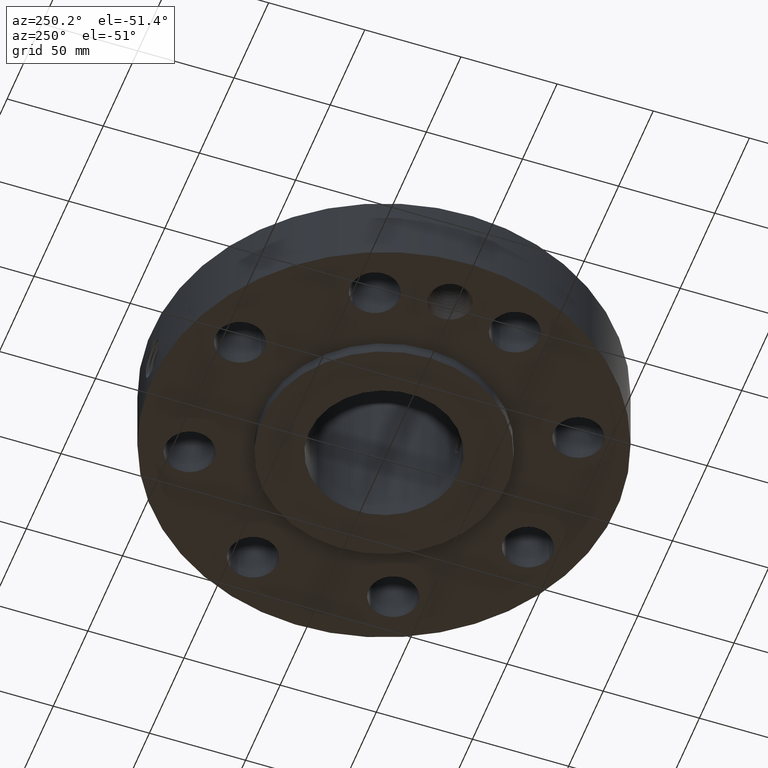
[diagram: clean part render]
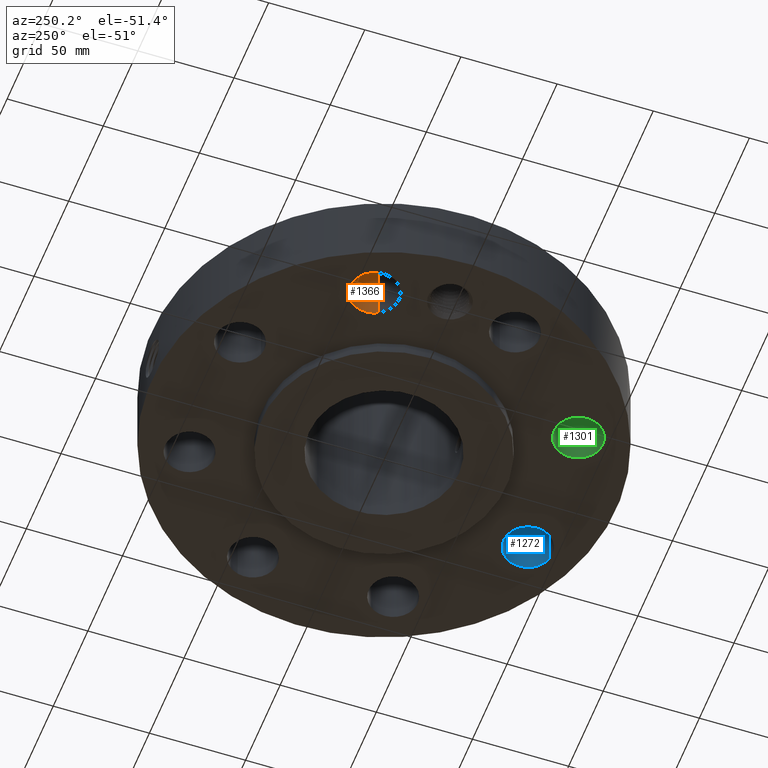
[diagram: same view with three faces highlighted in distinct colors, each labeled with its STEP entity id]
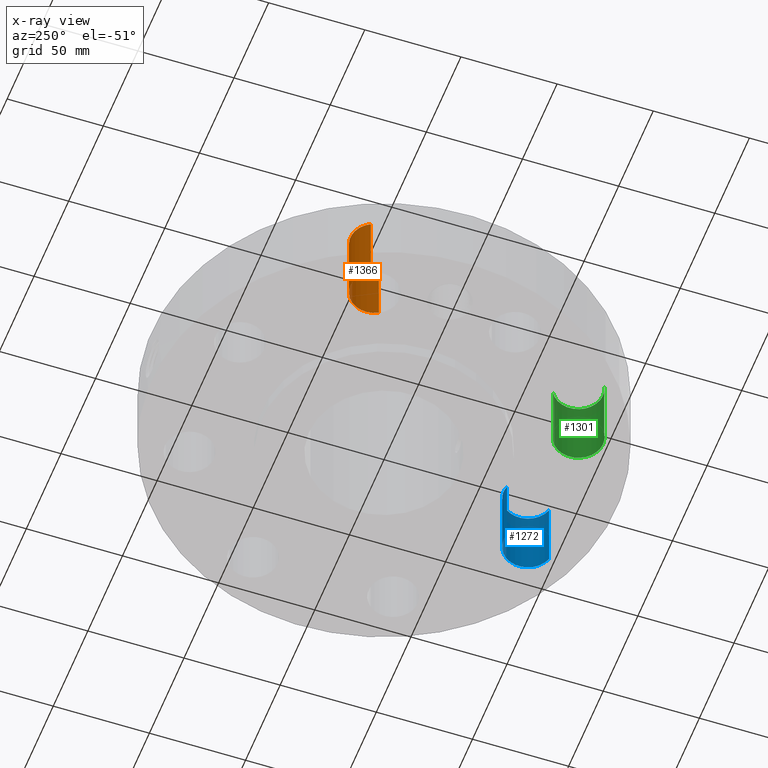
[diagram: x-ray of the same camera — body ghosted, the three highlighted faces saturated]
A machine part, auxiliary view with three faces highlighted in distinct colors.
The next image is the same camera in x-ray (body ghosted, the three faces saturated) — at least one of them is partly hidden behind the body in this view.
Their STEP definitions:

[orange] entity #1366 — the highlighted cylindrical surface (edge-blend (fillet) strip) has radius 12.7 mm, axis along (-0, 0, -1).
#311=AXIS2_PLACEMENT_3D('Circle Axis2P3D',#309,#310,$) ;
#607=AXIS2_PLACEMENT_3D('Circle Axis2P3D',#605,#606,$) ;
#1341=AXIS2_PLACEMENT_3D('Cylinder Axis2P3D',#1338,#1339,#1340) ;
#304=CARTESIAN_POINT('Vertex',(-3.02575696598,1.19535010207,0.250000000001)) ;
#306=CARTESIAN_POINT('Vertex',(-3.90333952788,1.67477564068,0.250000000001)) ;
#309=CARTESIAN_POINT('Axis2P3D Location',(-3.46454824693,1.43506287137,0.250000000001)) ;
#605=CARTESIAN_POINT('Axis2P3D Location',(-3.46454824693,1.43506287137,1.75000000001)) ;
#609=CARTESIAN_POINT('Vertex',(-3.90333952788,1.67477564068,1.75000000001)) ;
#611=CARTESIAN_POINT('Vertex',(-3.02575696598,1.19535010207,1.75000000001)) ;
#1338=CARTESIAN_POINT('Axis2P3D Location',(-3.46454824693,1.43506287137,1.74606299213)) ;
#1343=CARTESIAN_POINT('Line Origine',(-3.02575696598,1.19535010207,1.)) ;
#1348=CARTESIAN_POINT('Line Origine',(-3.90333952788,1.67477564068,1.)) ;
#310=DIRECTION('Axis2P3D Direction',(0.,0.,-0.0393700787402)) ;
#606=DIRECTION('Axis2P3D Direction',(0.,0.,-0.0393700787402)) ;
#1339=DIRECTION('Axis2P3D Direction',(-0.,0.,-0.0393700787402)) ;
#1340=DIRECTION('Axis2P3D XDirection',(-0.0345504945626,0.0188750212049,0.)) ;
#1344=DIRECTION('Vector Direction',(0.,0.,-0.0393700787402)) ;
#1349=DIRECTION('Vector Direction',(0.,0.,-0.0393700787402)) ;
#1345=VECTOR('Line Direction',#1344,0.0393700787402) ;
#1350=VECTOR('Line Direction',#1349,0.0393700787402) ;
#1361=ORIENTED_EDGE('',*,*,#1352,.F.) ;
#1362=ORIENTED_EDGE('',*,*,#313,.T.) ;
#1363=ORIENTED_EDGE('',*,*,#1347,.T.) ;
#1364=ORIENTED_EDGE('',*,*,#613,.F.) ;
#1366=ADVANCED_FACE('PartBody',(#1365),#1342,.F.) ;
#312=CIRCLE('generated circle',#311,0.500000000002) ;
#608=CIRCLE('generated circle',#607,0.500000000002) ;
#1342=CYLINDRICAL_SURFACE('generated cylinder',#1341,0.500000000002) ;
#313=EDGE_CURVE('',#307,#305,#312,.T.) ;
#613=EDGE_CURVE('',#610,#612,#608,.T.) ;
#1347=EDGE_CURVE('',#305,#612,#1346,.F.) ;
#1352=EDGE_CURVE('',#307,#610,#1351,.F.) ;
#1360=EDGE_LOOP('',(#1361,#1362,#1363,#1364)) ;
#1365=FACE_OUTER_BOUND('',#1360,.T.) ;
#1346=LINE('Line',#1343,#1345) ;
#1351=LINE('Line',#1348,#1350) ;
#305=VERTEX_POINT('',#304) ;
#307=VERTEX_POINT('',#306) ;
#610=VERTEX_POINT('',#609) ;
#612=VERTEX_POINT('',#611) ;

[blue] entity #1272 — the highlighted cylindrical surface (edge-blend (fillet) strip) has radius 12.7 mm, axis along (0, -0, -1).
#248=AXIS2_PLACEMENT_3D('Circle Axis2P3D',#246,#247,$) ;
#562=AXIS2_PLACEMENT_3D('Circle Axis2P3D',#560,#561,$) ;
#1254=AXIS2_PLACEMENT_3D('Cylinder Axis2P3D',#1251,#1252,#1253) ;
#246=CARTESIAN_POINT('Axis2P3D Location',(1.43506287137,-3.46454824693,0.250000000001)) ;
#250=CARTESIAN_POINT('Vertex',(1.2942931058,-2.98477343194,0.250000000001)) ;
#252=CARTESIAN_POINT('Vertex',(1.57583263695,-3.94432306193,0.250000000001)) ;
#555=CARTESIAN_POINT('Vertex',(1.57583263695,-3.94432306193,1.75000000001)) ;
#557=CARTESIAN_POINT('Vertex',(1.2942931058,-2.98477343194,1.75000000001)) ;
#560=CARTESIAN_POINT('Axis2P3D Location',(1.43506287137,-3.46454824693,1.75000000001)) ;
#1251=CARTESIAN_POINT('Axis2P3D Location',(1.43506287137,-3.46454824693,1.74606299213)) ;
#1256=CARTESIAN_POINT('Line Origine',(1.2942931058,-2.98477343194,1.)) ;
#1261=CARTESIAN_POINT('Line Origine',(1.57583263695,-3.94432306193,1.)) ;
#247=DIRECTION('Axis2P3D Direction',(0.,0.,-0.0393700787402)) ;
#561=DIRECTION('Axis2P3D Direction',(0.,0.,-0.0393700787402)) ;
#1252=DIRECTION('Axis2P3D Direction',(0.,-0.,-0.0393700787402)) ;
#1253=DIRECTION('Axis2P3D XDirection',(0.0110842335096,-0.0377775444876,0.)) ;
#1257=DIRECTION('Vector Direction',(0.,0.,-0.0393700787402)) ;
#1262=DIRECTION('Vector Direction',(0.,0.,-0.0393700787402)) ;
#1258=VECTOR('Line Direction',#1257,0.0393700787402) ;
#1263=VECTOR('Line Direction',#1262,0.0393700787402) ;
#1267=ORIENTED_EDGE('',*,*,#1260,.F.) ;
#1268=ORIENTED_EDGE('',*,*,#254,.T.) ;
#1269=ORIENTED_EDGE('',*,*,#1265,.T.) ;
#1270=ORIENTED_EDGE('',*,*,#564,.F.) ;
#1272=ADVANCED_FACE('PartBody',(#1271),#1255,.F.) ;
#249=CIRCLE('generated circle',#248,0.500000000002) ;
#563=CIRCLE('generated circle',#562,0.500000000002) ;
#1255=CYLINDRICAL_SURFACE('generated cylinder',#1254,0.500000000002) ;
#254=EDGE_CURVE('',#251,#253,#249,.T.) ;
#564=EDGE_CURVE('',#558,#556,#563,.T.) ;
#1260=EDGE_CURVE('',#251,#558,#1259,.F.) ;
#1265=EDGE_CURVE('',#253,#556,#1264,.F.) ;
#1266=EDGE_LOOP('',(#1267,#1268,#1269,#1270)) ;
#1271=FACE_OUTER_BOUND('',#1266,.T.) ;
#1259=LINE('Line',#1256,#1258) ;
#1264=LINE('Line',#1261,#1263) ;
#251=VERTEX_POINT('',#250) ;
#253=VERTEX_POINT('',#252) ;
#556=VERTEX_POINT('',#555) ;
#558=VERTEX_POINT('',#557) ;

[green] entity #1301 — the highlighted cylindrical surface (edge-blend (fillet) strip) has radius 12.7 mm, axis along (0, -0, -1).
#266=AXIS2_PLACEMENT_3D('Circle Axis2P3D',#264,#265,$) ;
#580=AXIS2_PLACEMENT_3D('Circle Axis2P3D',#578,#579,$) ;
#1283=AXIS2_PLACEMENT_3D('Cylinder Axis2P3D',#1280,#1281,#1282) ;
#264=CARTESIAN_POINT('Axis2P3D Location',(-1.43506287137,-3.46454824693,0.250000000001)) ;
#268=CARTESIAN_POINT('Vertex',(-1.19535010207,-3.02575696598,0.250000000001)) ;
#270=CARTESIAN_POINT('Vertex',(-1.67477564068,-3.90333952788,0.250000000001)) ;
#573=CARTESIAN_POINT('Vertex',(-1.67477564068,-3.90333952788,1.75000000001)) ;
#575=CARTESIAN_POINT('Vertex',(-1.19535010207,-3.02575696598,1.75000000001)) ;
#578=CARTESIAN_POINT('Axis2P3D Location',(-1.43506287137,-3.46454824693,1.75000000001)) ;
#1280=CARTESIAN_POINT('Axis2P3D Location',(-1.43506287137,-3.46454824693,1.74606299213)) ;
#1285=CARTESIAN_POINT('Line Origine',(-1.19535010207,-3.02575696598,1.)) ;
#1290=CARTESIAN_POINT('Line Origine',(-1.67477564068,-3.90333952788,1.)) ;
#265=DIRECTION('Axis2P3D Direction',(0.,0.,-0.0393700787402)) ;
#579=DIRECTION('Axis2P3D Direction',(0.,0.,-0.0393700787402)) ;
#1281=DIRECTION('Axis2P3D Direction',(0.,-0.,-0.0393700787402)) ;
#1282=DIRECTION('Axis2P3D XDirection',(-0.0188750212049,-0.0345504945626,0.)) ;
#1286=DIRECTION('Vector Direction',(0.,0.,-0.0393700787402)) ;
#1291=DIRECTION('Vector Direction',(0.,0.,-0.0393700787402)) ;
#1287=VECTOR('Line Direction',#1286,0.0393700787402) ;
#1292=VECTOR('Line Direction',#1291,0.0393700787402) ;
#1296=ORIENTED_EDGE('',*,*,#1289,.F.) ;
#1297=ORIENTED_EDGE('',*,*,#272,.T.) ;
#1298=ORIENTED_EDGE('',*,*,#1294,.T.) ;
#1299=ORIENTED_EDGE('',*,*,#582,.F.) ;
#1301=ADVANCED_FACE('PartBody',(#1300),#1284,.F.) ;
#267=CIRCLE('generated circle',#266,0.500000000002) ;
#581=CIRCLE('generated circle',#580,0.500000000002) ;
#1284=CYLINDRICAL_SURFACE('generated cylinder',#1283,0.500000000002) ;
#272=EDGE_CURVE('',#269,#271,#267,.T.) ;
#582=EDGE_CURVE('',#576,#574,#581,.T.) ;
#1289=EDGE_CURVE('',#269,#576,#1288,.F.) ;
#1294=EDGE_CURVE('',#271,#574,#1293,.F.) ;
#1295=EDGE_LOOP('',(#1296,#1297,#1298,#1299)) ;
#1300=FACE_OUTER_BOUND('',#1295,.T.) ;
#1288=LINE('Line',#1285,#1287) ;
#1293=LINE('Line',#1290,#1292) ;
#269=VERTEX_POINT('',#268) ;
#271=VERTEX_POINT('',#270) ;
#574=VERTEX_POINT('',#573) ;
#576=VERTEX_POINT('',#575) ;